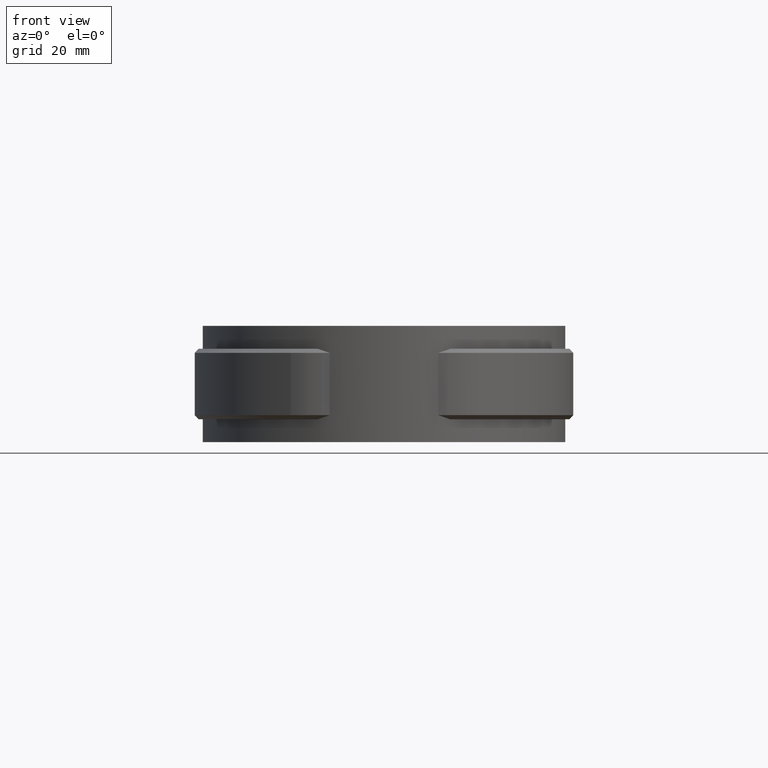
[diagram: clean part render]
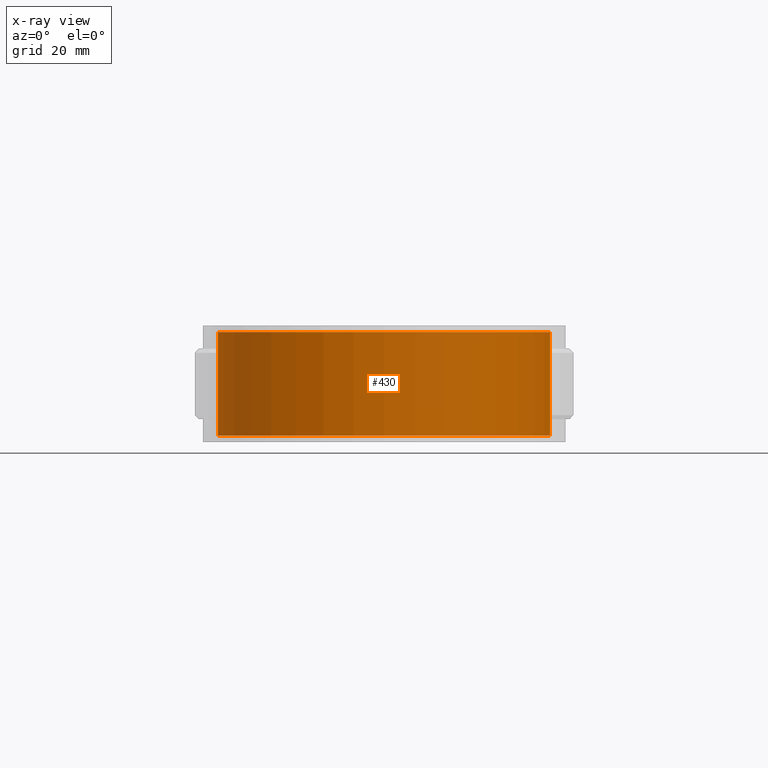
[diagram: x-ray — body ghosted, one internal face saturated and labeled with its STEP entity id]
A machine part, front view, then the same camera in x-ray: the body is ghosted and one INTERNAL B-rep face — a face not visible from any outside direction — is saturated and labeled: STEP entity #430.
In plain terms, the highlighted cylindrical surface (partial cylindrical patch) has radius 40.1 mm, axis along (0, 0, -1).
Its self-contained STEP definition (entity closure, byte-faithful):
#430 = ADVANCED_FACE( '', ( #808 ), #809, .T. );
#808 = FACE_OUTER_BOUND( '', #1724, .T. );
#809 = CYLINDRICAL_SURFACE( '', #1725, 40.1000000000000 );
#1724 = EDGE_LOOP( '', ( #3369, #3370, #3371, #3372 ) );
#1725 = AXIS2_PLACEMENT_3D( '', #3373, #3374, #3375 );
#3369 = ORIENTED_EDGE( '', *, *, #5496, .F. );
#3370 = ORIENTED_EDGE( '', *, *, #5545, .F. );
#3371 = ORIENTED_EDGE( '', *, *, #5546, .T. );
#3372 = ORIENTED_EDGE( '', *, *, #5547, .T. );
#3373 = CARTESIAN_POINT( '', ( 0.000000000000000, 0.000000000000000, -14.0000000000000 ) );
#3374 = DIRECTION( '', ( 0.000000000000000, 0.000000000000000, -1.00000000000000 ) );
#3375 = DIRECTION( '', ( 1.00000000000000, -6.07153216591883E-017, 0.000000000000000 ) );
#5496 = EDGE_CURVE( '', #6455, #6457, #6458, .T. );
#5545 = EDGE_CURVE( '', #6536, #6455, #6537, .T. );
#5546 = EDGE_CURVE( '', #6536, #6538, #6539, .T. );
#5547 = EDGE_CURVE( '', #6538, #6457, #6540, .T. );
#6455 = VERTEX_POINT( '', #8977 );
#6457 = VERTEX_POINT( '', #8979 );
#6458 = LINE( '', #8980, #8981 );
#6536 = VERTEX_POINT( '', #9101 );
#6537 = CIRCLE( '', #9102, 40.1000000000000 );
#6538 = VERTEX_POINT( '', #9103 );
#6539 = LINE( '', #9104, #9105 );
#6540 = CIRCLE( '', #9106, 40.1000000000000 );
#8977 = CARTESIAN_POINT( '', ( -6.51276102088167, 39.5675870364227, -12.5000000000000 ) );
#8979 = CARTESIAN_POINT( '', ( -6.51276102088167, 39.5675870364227, 12.5000000000000 ) );
#8980 = CARTESIAN_POINT( '', ( -6.51276102088167, 39.5675870364227, -14.0000000000000 ) );
#8981 = VECTOR( '', #10863, 1000.00000000000 );
#9101 = CARTESIAN_POINT( '', ( 6.51276102088169, 39.5675870364227, -12.5000000000000 ) );
#9102 = AXIS2_PLACEMENT_3D( '', #10942, #10943, #10944 );
#9103 = CARTESIAN_POINT( '', ( 6.51276102088167, 39.5675870364227, 12.5000000000000 ) );
#9104 = CARTESIAN_POINT( '', ( 6.51276102088169, 39.5675870364227, -14.0000000000000 ) );
#9105 = VECTOR( '', #10945, 1000.00000000000 );
#9106 = AXIS2_PLACEMENT_3D( '', #10946, #10947, #10948 );
#10863 = DIRECTION( '', ( 0.000000000000000, 0.000000000000000, 1.00000000000000 ) );
#10942 = CARTESIAN_POINT( '', ( 0.000000000000000, 0.000000000000000, -12.5000000000000 ) );
#10943 = DIRECTION( '', ( 0.000000000000000, 0.000000000000000, -1.00000000000000 ) );
#10944 = DIRECTION( '', ( 1.00000000000000, 0.000000000000000, 0.000000000000000 ) );
#10945 = DIRECTION( '', ( 0.000000000000000, 0.000000000000000, 1.00000000000000 ) );
#10946 = CARTESIAN_POINT( '', ( 0.000000000000000, 0.000000000000000, 12.5000000000000 ) );
#10947 = DIRECTION( '', ( 0.000000000000000, 0.000000000000000, -1.00000000000000 ) );
#10948 = DIRECTION( '', ( 1.00000000000000, 0.000000000000000, 0.000000000000000 ) );